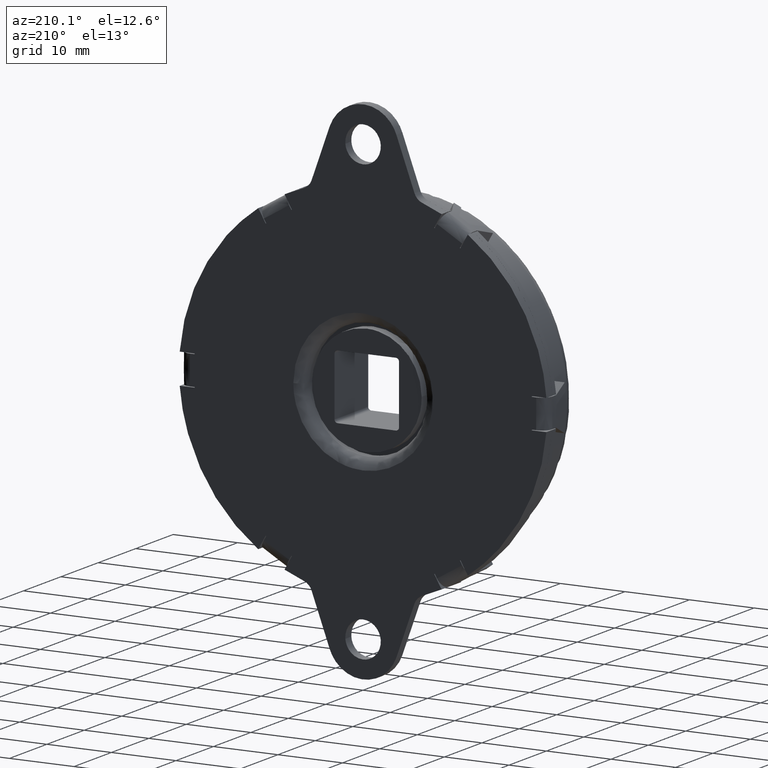
[diagram: clean part render]
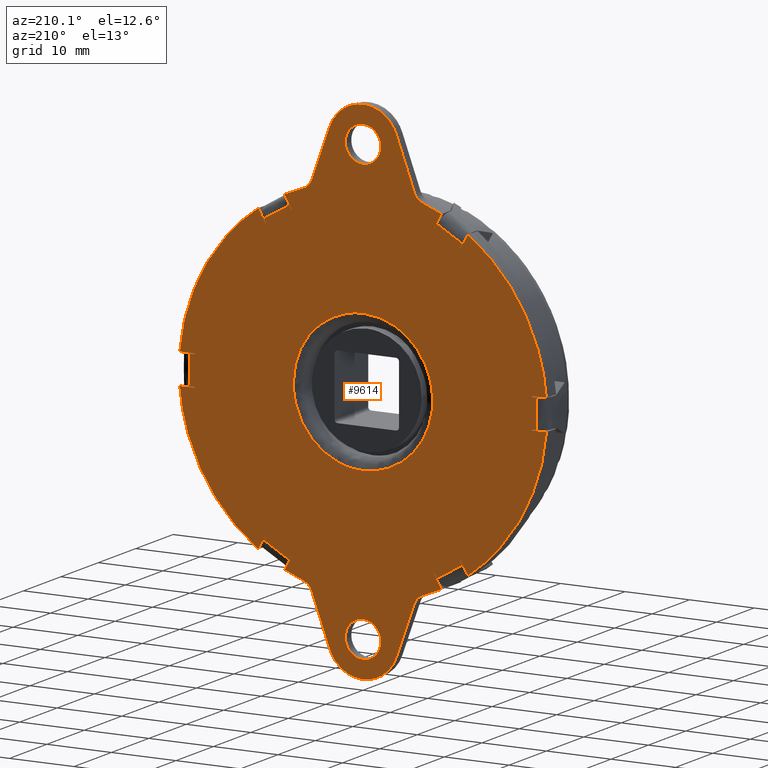
[diagram: same view with one face highlighted and labeled with its STEP entity id]
A machine part, auxiliary view. The second image highlights one B-rep face of the part: STEP entity #9614.
In plain terms, the highlighted face is a freeform B-spline surface patch.
Its self-contained STEP definition (entity closure, byte-faithful):
#2392=CARTESIAN_POINT('',(-2.741522667755105,-3.816392E-017,-33.784237486608703));
#2393=VERTEX_POINT('',#2392);
#2399=CARTESIAN_POINT('',(0.0,0.0,-31.250000000000000));
#2400=VERTEX_POINT('',#2399);
#2401=CARTESIAN_POINT('',(0.0,0.0,-31.250000000000000));
#2402=CARTESIAN_POINT('',(-2.542073851800144,0.0,-31.250000000000004));
#2403=CARTESIAN_POINT('',(-2.741522667755105,-3.816392E-017,-33.784237486608703));
#2411=(BOUNDED_CURVE()B_SPLINE_CURVE(2,(#2401,#2402,#2403),.UNSPECIFIED.,.F.,.U.)B_SPLINE_CURVE_WITH_KNOTS((3,3),(0.0,0.236331300615293),.UNSPECIFIED.)CURVE()GEOMETRIC_REPRESENTATION_ITEM()RATIONAL_B_SPLINE_CURVE((1.0,0.723120658625669,0.969723356135348))REPRESENTATION_ITEM(''));
#2412=EDGE_CURVE('',#2400,#2393,#2411,.T.);
#2414=CARTESIAN_POINT('',(2.741522667755104,-3.816392E-017,-34.215762513391297));
#2415=VERTEX_POINT('',#2414);
#2416=CARTESIAN_POINT('',(2.741522667755104,-3.816392E-017,-34.215762513391297));
#2417=CARTESIAN_POINT('',(2.750000000000000,0.0,-34.108047794411462));
#2418=CARTESIAN_POINT('',(2.750000000000000,0.0,-34.0));
#2419=CARTESIAN_POINT('',(2.750000000000000,0.0,-31.250000000000000));
#2420=CARTESIAN_POINT('',(0.0,0.0,-31.250000000000000));
#2428=(BOUNDED_CURVE()B_SPLINE_CURVE(2,(#2416,#2417,#2418,#2419,#2420),.UNSPECIFIED.,.F.,.U.)B_SPLINE_CURVE_WITH_KNOTS((3,2,3),(0.736331300615293,0.750000000000000,1.0),.UNSPECIFIED.)CURVE()GEOMETRIC_REPRESENTATION_ITEM()RATIONAL_B_SPLINE_CURVE((0.969723356135349,0.983986122560879,1.0,0.707106781186548,1.0))REPRESENTATION_ITEM(''));
#2429=EDGE_CURVE('',#2415,#2400,#2428,.T.);
#2505=CARTESIAN_POINT('',(0.0,0.0,-36.750000000000007));
#2506=VERTEX_POINT('',#2505);
#2507=CARTESIAN_POINT('',(0.0,0.0,-36.750000000000007));
#2508=CARTESIAN_POINT('',(2.542073851800152,0.0,-36.750000000000014));
#2509=CARTESIAN_POINT('',(2.741522667755105,-3.816392E-017,-34.215762513391297));
#2517=(BOUNDED_CURVE()B_SPLINE_CURVE(2,(#2507,#2508,#2509),.UNSPECIFIED.,.F.,.U.)B_SPLINE_CURVE_WITH_KNOTS((3,3),(0.500000000000000,0.736331300615293),.UNSPECIFIED.)CURVE()GEOMETRIC_REPRESENTATION_ITEM()RATIONAL_B_SPLINE_CURVE((1.0,0.723120658625668,0.969723356135350))REPRESENTATION_ITEM(''));
#2518=EDGE_CURVE('',#2506,#2415,#2517,.T.);
#2520=CARTESIAN_POINT('',(-2.741522667755105,-3.816392E-017,-33.784237486608710));
#2521=CARTESIAN_POINT('',(-2.750000000000000,0.0,-33.891952205588538));
#2522=CARTESIAN_POINT('',(-2.750000000000000,0.0,-34.0));
#2523=CARTESIAN_POINT('',(-2.750000000000000,0.0,-36.750000000000007));
#2524=CARTESIAN_POINT('',(0.0,0.0,-36.750000000000007));
#2532=(BOUNDED_CURVE()B_SPLINE_CURVE(2,(#2520,#2521,#2522,#2523,#2524),.UNSPECIFIED.,.F.,.U.)B_SPLINE_CURVE_WITH_KNOTS((3,2,3),(0.236331300615293,0.250000000000000,0.500000000000000),.UNSPECIFIED.)CURVE()GEOMETRIC_REPRESENTATION_ITEM()RATIONAL_B_SPLINE_CURVE((0.969723356135348,0.983986122560879,1.0,0.707106781186548,1.0))REPRESENTATION_ITEM(''));
#2533=EDGE_CURVE('',#2393,#2506,#2532,.T.);
#2574=CARTESIAN_POINT('',(-2.741522667755105,-3.816392E-017,34.215762513391297));
#2575=VERTEX_POINT('',#2574);
#2581=CARTESIAN_POINT('',(0.0,0.0,36.750000000000007));
#2582=VERTEX_POINT('',#2581);
#2583=CARTESIAN_POINT('',(0.0,0.0,36.750000000000007));
#2584=CARTESIAN_POINT('',(-2.542073851800152,0.0,36.750000000000014));
#2585=CARTESIAN_POINT('',(-2.741522667755105,-3.816392E-017,34.215762513391297));
#2593=(BOUNDED_CURVE()B_SPLINE_CURVE(2,(#2583,#2584,#2585),.UNSPECIFIED.,.F.,.U.)B_SPLINE_CURVE_WITH_KNOTS((3,3),(0.0,0.236331300615293),.UNSPECIFIED.)CURVE()GEOMETRIC_REPRESENTATION_ITEM()RATIONAL_B_SPLINE_CURVE((1.0,0.723120658625668,0.969723356135350))REPRESENTATION_ITEM(''));
#2594=EDGE_CURVE('',#2582,#2575,#2593,.T.);
#2596=CARTESIAN_POINT('',(2.741522667755105,-3.816392E-017,33.784237486608703));
#2597=VERTEX_POINT('',#2596);
#2598=CARTESIAN_POINT('',(2.741522667755106,-3.816392E-017,33.784237486608703));
#2599=CARTESIAN_POINT('',(2.750000000000001,0.0,33.891952205588538));
#2600=CARTESIAN_POINT('',(2.750000000000000,0.0,34.0));
#2601=CARTESIAN_POINT('',(2.750000000000000,0.0,36.750000000000007));
#2602=CARTESIAN_POINT('',(0.0,0.0,36.750000000000007));
#2610=(BOUNDED_CURVE()B_SPLINE_CURVE(2,(#2598,#2599,#2600,#2601,#2602),.UNSPECIFIED.,.F.,.U.)B_SPLINE_CURVE_WITH_KNOTS((3,2,3),(0.736331300615294,0.750000000000000,1.0),.UNSPECIFIED.)CURVE()GEOMETRIC_REPRESENTATION_ITEM()RATIONAL_B_SPLINE_CURVE((0.969723356135350,0.983986122560879,1.0,0.707106781186548,1.0))REPRESENTATION_ITEM(''));
#2611=EDGE_CURVE('',#2597,#2582,#2610,.T.);
#2687=CARTESIAN_POINT('',(0.0,0.0,31.250000000000000));
#2688=VERTEX_POINT('',#2687);
#2689=CARTESIAN_POINT('',(0.0,0.0,31.250000000000000));
#2690=CARTESIAN_POINT('',(2.542073851800152,0.0,31.249999999999993));
#2691=CARTESIAN_POINT('',(2.741522667755106,-3.816392E-017,33.784237486608703));
#2699=(BOUNDED_CURVE()B_SPLINE_CURVE(2,(#2689,#2690,#2691),.UNSPECIFIED.,.F.,.U.)B_SPLINE_CURVE_WITH_KNOTS((3,3),(0.500000000000000,0.736331300615293),.UNSPECIFIED.)CURVE()GEOMETRIC_REPRESENTATION_ITEM()RATIONAL_B_SPLINE_CURVE((1.0,0.723120658625668,0.969723356135350))REPRESENTATION_ITEM(''));
#2700=EDGE_CURVE('',#2688,#2597,#2699,.T.);
#2702=CARTESIAN_POINT('',(-2.741522667755105,-3.816392E-017,34.215762513391297));
#2703=CARTESIAN_POINT('',(-2.750000000000000,0.0,34.108047794411462));
#2704=CARTESIAN_POINT('',(-2.750000000000000,0.0,34.0));
#2705=CARTESIAN_POINT('',(-2.750000000000000,0.0,31.250000000000000));
#2706=CARTESIAN_POINT('',(0.0,0.0,31.250000000000000));
#2714=(BOUNDED_CURVE()B_SPLINE_CURVE(2,(#2702,#2703,#2704,#2705,#2706),.UNSPECIFIED.,.F.,.U.)B_SPLINE_CURVE_WITH_KNOTS((3,2,3),(0.236331300615293,0.250000000000000,0.500000000000000),.UNSPECIFIED.)CURVE()GEOMETRIC_REPRESENTATION_ITEM()RATIONAL_B_SPLINE_CURVE((0.969723356135350,0.983986122560879,1.0,0.707106781186548,1.0))REPRESENTATION_ITEM(''));
#2715=EDGE_CURVE('',#2575,#2688,#2714,.T.);
#2822=CARTESIAN_POINT('',(-15.082357673937750,0.0,-21.423409789186501));
#2823=VERTEX_POINT('',#2822);
#2829=CARTESIAN_POINT('',(-15.000161466032150,0.0,-21.481041780904501));
#2830=VERTEX_POINT('',#2829);
#2831=CARTESIAN_POINT('',(-15.082357673937739,0.0,-21.423409789186490));
#2832=CARTESIAN_POINT('',(-15.041314775575350,0.0,-21.452304520658650));
#2833=CARTESIAN_POINT('',(-15.000161466032150,0.0,-21.481041780904491));
#2841=(BOUNDED_CURVE()B_SPLINE_CURVE(2,(#2831,#2832,#2833),.UNSPECIFIED.,.F.,.U.)CURVE()GEOMETRIC_REPRESENTATION_ITEM()QUASI_UNIFORM_CURVE()RATIONAL_B_SPLINE_CURVE((1.0,0.999998164866501,1.0))REPRESENTATION_ITEM(''));
#2842=EDGE_CURVE('',#2823,#2830,#2841,.T.);
#2956=CARTESIAN_POINT('',(-11.103047091484960,0.0,-23.731041681281798));
#2957=VERTEX_POINT('',#2956);
#2963=CARTESIAN_POINT('',(-11.012038276150861,0.0,-23.773409789186498));
#2964=VERTEX_POINT('',#2963);
#2965=CARTESIAN_POINT('',(-11.103047091484960,0.0,-23.731041681281798));
#2966=CARTESIAN_POINT('',(-11.057583292340741,0.0,-23.752312964371782));
#2967=CARTESIAN_POINT('',(-11.012038276150850,0.0,-23.773409789186498));
#2975=(BOUNDED_CURVE()B_SPLINE_CURVE(2,(#2965,#2966,#2967),.UNSPECIFIED.,.F.,.U.)CURVE()GEOMETRIC_REPRESENTATION_ITEM()QUASI_UNIFORM_CURVE()RATIONAL_B_SPLINE_CURVE((1.0,0.999998164866862,1.0))REPRESENTATION_ITEM(''));
#2976=EDGE_CURVE('',#2957,#2964,#2975,.T.);
#3000=CARTESIAN_POINT('',(11.012038276150840,0.0,-23.773409789186498));
#3001=VERTEX_POINT('',#3000);
#3007=CARTESIAN_POINT('',(11.103047149002141,0.0,-23.731041780904501));
#3008=VERTEX_POINT('',#3007);
#3009=CARTESIAN_POINT('',(11.012038276150840,0.0,-23.773409789186509));
#3010=CARTESIAN_POINT('',(11.057583296822711,0.0,-23.752312962295701));
#3011=CARTESIAN_POINT('',(11.103047149002141,0.0,-23.731041780904508));
#3019=(BOUNDED_CURVE()B_SPLINE_CURVE(2,(#3009,#3010,#3011),.UNSPECIFIED.,.F.,.U.)CURVE()GEOMETRIC_REPRESENTATION_ITEM()QUASI_UNIFORM_CURVE()RATIONAL_B_SPLINE_CURVE((1.0,0.999998164866502,1.0))REPRESENTATION_ITEM(''));
#3020=EDGE_CURVE('',#3001,#3008,#3019,.T.);
#3134=CARTESIAN_POINT('',(15.000161408514950,0.0,-21.481041681281798));
#3135=VERTEX_POINT('',#3134);
#3141=CARTESIAN_POINT('',(15.082357673937750,0.0,-21.423409789186501));
#3142=VERTEX_POINT('',#3141);
#3143=CARTESIAN_POINT('',(15.000161408514950,0.0,-21.481041681281798));
#3144=CARTESIAN_POINT('',(15.041314779615314,0.0,-21.452304517814468));
#3145=CARTESIAN_POINT('',(15.082357673937731,0.0,-21.423409789186490));
#3153=(BOUNDED_CURVE()B_SPLINE_CURVE(2,(#3143,#3144,#3145),.UNSPECIFIED.,.F.,.U.)CURVE()GEOMETRIC_REPRESENTATION_ITEM()QUASI_UNIFORM_CURVE()RATIONAL_B_SPLINE_CURVE((1.0,0.999998164866862,1.0))REPRESENTATION_ITEM(''));
#3154=EDGE_CURVE('',#3135,#3142,#3153,.T.);
#3178=CARTESIAN_POINT('',(26.094395950088600,0.0,-2.350000000000000));
#3179=VERTEX_POINT('',#3178);
#3185=CARTESIAN_POINT('',(26.103208499999901,0.0,-2.250000000000000));
#3186=VERTEX_POINT('',#3185);
#3187=CARTESIAN_POINT('',(26.094395950088590,0.0,-2.349999999999994));
#3188=CARTESIAN_POINT('',(26.098898071954782,0.0,-2.300008446556680));
#3189=CARTESIAN_POINT('',(26.103208499999901,0.0,-2.250000000000000));
#3197=(BOUNDED_CURVE()B_SPLINE_CURVE(2,(#3187,#3188,#3189),.UNSPECIFIED.,.F.,.U.)CURVE()GEOMETRIC_REPRESENTATION_ITEM()QUASI_UNIFORM_CURVE()RATIONAL_B_SPLINE_CURVE((1.0,0.999998164866863,1.0))REPRESENTATION_ITEM(''));
#3198=EDGE_CURVE('',#3179,#3186,#3197,.T.);
#3312=CARTESIAN_POINT('',(26.103208615034301,0.0,2.250000000000000));
#3313=VERTEX_POINT('',#3312);
#3319=CARTESIAN_POINT('',(26.094395950088600,0.0,2.350000000000000));
#3320=VERTEX_POINT('',#3319);
#3321=CARTESIAN_POINT('',(26.103208615034280,0.0,2.250000000000005));
#3322=CARTESIAN_POINT('',(26.098898072397855,0.0,2.300008441636840));
#3323=CARTESIAN_POINT('',(26.094395950088590,0.0,2.349999999999985));
#3331=(BOUNDED_CURVE()B_SPLINE_CURVE(2,(#3321,#3322,#3323),.UNSPECIFIED.,.F.,.U.)CURVE()GEOMETRIC_REPRESENTATION_ITEM()QUASI_UNIFORM_CURVE()RATIONAL_B_SPLINE_CURVE((1.0,0.999998164866501,1.0))REPRESENTATION_ITEM(''));
#3332=EDGE_CURVE('',#3313,#3320,#3331,.T.);
#3645=CARTESIAN_POINT('',(15.082357673937750,0.0,21.423409789186501));
#3646=VERTEX_POINT('',#3645);
#3652=CARTESIAN_POINT('',(15.000161466032150,0.0,21.481041780904501));
#3653=VERTEX_POINT('',#3652);
#3654=CARTESIAN_POINT('',(15.082357673937750,0.0,21.423409789186479));
#3655=CARTESIAN_POINT('',(15.041314775575421,0.0,21.452304520658604));
#3656=CARTESIAN_POINT('',(15.000161466032150,0.0,21.481041780904491));
#3664=(BOUNDED_CURVE()B_SPLINE_CURVE(2,(#3654,#3655,#3656),.UNSPECIFIED.,.F.,.U.)CURVE()GEOMETRIC_REPRESENTATION_ITEM()QUASI_UNIFORM_CURVE()RATIONAL_B_SPLINE_CURVE((1.0,0.999998164866501,1.0))REPRESENTATION_ITEM(''));
#3665=EDGE_CURVE('',#3646,#3653,#3664,.T.);
#3779=CARTESIAN_POINT('',(11.103047091484941,0.0,23.731041681281798));
#3780=VERTEX_POINT('',#3779);
#3786=CARTESIAN_POINT('',(11.012038276150840,0.0,23.773409789186498));
#3787=VERTEX_POINT('',#3786);
#3788=CARTESIAN_POINT('',(11.103047091484941,0.0,23.731041681281798));
#3789=CARTESIAN_POINT('',(11.057583292341331,0.0,23.752312964371512));
#3790=CARTESIAN_POINT('',(11.012038276150850,0.0,23.773409789186498));
#3798=(BOUNDED_CURVE()B_SPLINE_CURVE(2,(#3788,#3789,#3790),.UNSPECIFIED.,.F.,.U.)CURVE()GEOMETRIC_REPRESENTATION_ITEM()QUASI_UNIFORM_CURVE()RATIONAL_B_SPLINE_CURVE((1.0,0.999998164866863,1.0))REPRESENTATION_ITEM(''));
#3799=EDGE_CURVE('',#3780,#3787,#3798,.T.);
#3823=CARTESIAN_POINT('',(-11.012038276150861,0.0,23.773409789186498));
#3824=VERTEX_POINT('',#3823);
#3830=CARTESIAN_POINT('',(-11.103047149002141,0.0,23.731041780904501));
#3831=VERTEX_POINT('',#3830);
#3832=CARTESIAN_POINT('',(-11.012038276150861,0.0,23.773409789186498));
#3833=CARTESIAN_POINT('',(-11.057583296821532,0.0,23.752312962296248));
#3834=CARTESIAN_POINT('',(-11.103047149002149,0.0,23.731041780904501));
#3842=(BOUNDED_CURVE()B_SPLINE_CURVE(2,(#3832,#3833,#3834),.UNSPECIFIED.,.F.,.U.)CURVE()GEOMETRIC_REPRESENTATION_ITEM()QUASI_UNIFORM_CURVE()RATIONAL_B_SPLINE_CURVE((1.0,0.999998164866501,1.0))REPRESENTATION_ITEM(''));
#3843=EDGE_CURVE('',#3824,#3831,#3842,.T.);
#3957=CARTESIAN_POINT('',(-15.000161408514950,0.0,21.481041681281798));
#3958=VERTEX_POINT('',#3957);
#3964=CARTESIAN_POINT('',(-15.082357673937750,0.0,21.423409789186501));
#3965=VERTEX_POINT('',#3964);
#3966=CARTESIAN_POINT('',(-15.000161408514950,0.0,21.481041681281798));
#3967=CARTESIAN_POINT('',(-15.041314779614513,0.0,21.452304517815023));
#3968=CARTESIAN_POINT('',(-15.082357673937750,0.0,21.423409789186479));
#3976=(BOUNDED_CURVE()B_SPLINE_CURVE(2,(#3966,#3967,#3968),.UNSPECIFIED.,.F.,.U.)CURVE()GEOMETRIC_REPRESENTATION_ITEM()QUASI_UNIFORM_CURVE()RATIONAL_B_SPLINE_CURVE((1.0,0.999998164866863,1.0))REPRESENTATION_ITEM(''));
#3977=EDGE_CURVE('',#3958,#3965,#3976,.T.);
#4001=CARTESIAN_POINT('',(-26.094395950088600,0.0,2.350000000000000));
#4002=VERTEX_POINT('',#4001);
#4008=CARTESIAN_POINT('',(-26.103208615034301,0.0,2.250000000000000));
#4009=VERTEX_POINT('',#4008);
#4010=CARTESIAN_POINT('',(-26.094395950088590,0.0,2.349999999999991));
#4011=CARTESIAN_POINT('',(-26.098898072397855,0.0,2.300008441636852));
#4012=CARTESIAN_POINT('',(-26.103208615034280,0.0,2.250000000000012));
#4020=(BOUNDED_CURVE()B_SPLINE_CURVE(2,(#4010,#4011,#4012),.UNSPECIFIED.,.F.,.U.)CURVE()GEOMETRIC_REPRESENTATION_ITEM()QUASI_UNIFORM_CURVE()RATIONAL_B_SPLINE_CURVE((1.0,0.999998164866501,1.0))REPRESENTATION_ITEM(''));
#4021=EDGE_CURVE('',#4002,#4009,#4020,.T.);
#4135=CARTESIAN_POINT('',(-26.103208499999901,0.0,-2.250000000000000));
#4136=VERTEX_POINT('',#4135);
#4142=CARTESIAN_POINT('',(-26.094395950088600,0.0,-2.350000000000000));
#4143=VERTEX_POINT('',#4142);
#4144=CARTESIAN_POINT('',(-26.103208499999901,0.0,-2.250000000000000));
#4145=CARTESIAN_POINT('',(-26.098898071954778,0.0,-2.300008446556676));
#4146=CARTESIAN_POINT('',(-26.094395950088590,0.0,-2.349999999999988));
#4154=(BOUNDED_CURVE()B_SPLINE_CURVE(2,(#4144,#4145,#4146),.UNSPECIFIED.,.F.,.U.)CURVE()GEOMETRIC_REPRESENTATION_ITEM()QUASI_UNIFORM_CURVE()RATIONAL_B_SPLINE_CURVE((1.0,0.999998164866863,1.0))REPRESENTATION_ITEM(''));
#4155=EDGE_CURVE('',#4136,#4143,#4154,.T.);
#4558=CARTESIAN_POINT('',(0.0,0.0,-10.800000000000001));
#4559=VERTEX_POINT('',#4558);
#4560=CARTESIAN_POINT('',(3.815661238658730,-2.288132E-014,-10.103500839751380));
#4561=VERTEX_POINT('',#4560);
#4562=CARTESIAN_POINT('',(0.0,0.0,-10.800000000000001));
#4563=CARTESIAN_POINT('',(1.971399035252309,0.0,-10.800000000000001));
#4564=CARTESIAN_POINT('',(3.815661238658730,-2.288132E-014,-10.103500839751380));
#4572=(BOUNDED_CURVE()B_SPLINE_CURVE(2,(#4562,#4563,#4564),.UNSPECIFIED.,.F.,.U.)B_SPLINE_CURVE_WITH_KNOTS((3,3),(0.500000000000000,0.560000000007809),.UNSPECIFIED.)CURVE()GEOMETRIC_REPRESENTATION_ITEM()RATIONAL_B_SPLINE_CURVE((1.0,0.929705627475622,0.893152553767337))REPRESENTATION_ITEM(''));
#4573=EDGE_CURVE('',#4559,#4561,#4572,.T.);
#4575=CARTESIAN_POINT('',(0.0,0.0,10.800000000000001));
#4576=VERTEX_POINT('',#4575);
#4577=CARTESIAN_POINT('',(0.0,0.0,10.800000000000001));
#4578=CARTESIAN_POINT('',(-10.800000000000001,0.0,10.800000000000001));
#4579=CARTESIAN_POINT('',(-10.800000000000001,0.0,0.0));
#4580=CARTESIAN_POINT('',(-10.800000000000001,0.0,-10.800000000000001));
#4581=CARTESIAN_POINT('',(0.0,0.0,-10.800000000000001));
#4589=(BOUNDED_CURVE()B_SPLINE_CURVE(2,(#4577,#4578,#4579,#4580,#4581),.UNSPECIFIED.,.F.,.U.)B_SPLINE_CURVE_WITH_KNOTS((3,2,3),(0.0,0.250000000000000,0.500000000000000),.UNSPECIFIED.)CURVE()GEOMETRIC_REPRESENTATION_ITEM()RATIONAL_B_SPLINE_CURVE((1.0,0.707106781186548,1.0,0.707106781186548,1.0))REPRESENTATION_ITEM(''));
#4590=EDGE_CURVE('',#4576,#4559,#4589,.T.);
#4592=CARTESIAN_POINT('',(10.799999999944490,-2.285745E-014,4.437237E-016));
#4593=VERTEX_POINT('',#4592);
#4594=CARTESIAN_POINT('',(10.799999999944490,-2.285745E-014,4.437237E-016));
#4595=CARTESIAN_POINT('',(10.800000000000001,0.0,10.800000000000001));
#4596=CARTESIAN_POINT('',(0.0,0.0,10.800000000000001));
#4604=(BOUNDED_CURVE()B_SPLINE_CURVE(2,(#4594,#4595,#4596),.UNSPECIFIED.,.F.,.U.)B_SPLINE_CURVE_WITH_KNOTS((3,3),(0.750000000000000,1.0),.UNSPECIFIED.)CURVE()GEOMETRIC_REPRESENTATION_ITEM()RATIONAL_B_SPLINE_CURVE((1.0,0.707106781186548,1.0))REPRESENTATION_ITEM(''));
#4605=EDGE_CURVE('',#4593,#4576,#4604,.T.);
#4658=CARTESIAN_POINT('',(3.815661238658730,-2.288132E-014,-10.103500839751380));
#4659=CARTESIAN_POINT('',(10.800000000000020,0.0,-7.465814054990247));
#4660=CARTESIAN_POINT('',(10.799999999944488,-2.285745E-014,4.437237E-016));
#4668=(BOUNDED_CURVE()B_SPLINE_CURVE(2,(#4658,#4659,#4660),.UNSPECIFIED.,.F.,.U.)B_SPLINE_CURVE_WITH_KNOTS((3,3),(0.560000000007808,0.750000000000000),.UNSPECIFIED.)CURVE()GEOMETRIC_REPRESENTATION_ITEM()RATIONAL_B_SPLINE_CURVE((0.893152553767338,0.777401153710924,1.000000000000001))REPRESENTATION_ITEM(''));
#4669=EDGE_CURVE('',#4561,#4593,#4668,.T.);
#5404=CARTESIAN_POINT('',(-11.454311004685140,-3.694822E-012,24.339448625799850));
#5405=VERTEX_POINT('',#5404);
#5436=CARTESIAN_POINT('',(-15.351425321708501,0.0,22.089448625803399));
#5437=VERTEX_POINT('',#5436);
#5438=CARTESIAN_POINT('',(-15.351425321708509,0.0,22.089448625803382));
#5439=CARTESIAN_POINT('',(-13.497297578198559,0.0,23.378005170313578));
#5440=CARTESIAN_POINT('',(-11.454311004685140,-3.694822E-012,24.339448625799850));
#5448=(BOUNDED_CURVE()B_SPLINE_CURVE(2,(#5438,#5439,#5440),.UNSPECIFIED.,.F.,.U.)CURVE()GEOMETRIC_REPRESENTATION_ITEM()QUASI_UNIFORM_CURVE()RATIONAL_B_SPLINE_CURVE((1.0,0.996495774215292,1.0))REPRESENTATION_ITEM(''));
#5449=EDGE_CURVE('',#5437,#5405,#5448,.T.);
#5514=CARTESIAN_POINT('',(-26.805736326391500,-3.694822E-012,2.249999999995000));
#5515=VERTEX_POINT('',#5514);
#5546=CARTESIAN_POINT('',(-26.805736326391251,0.0,-2.249999999997615));
#5547=VERTEX_POINT('',#5546);
#5548=CARTESIAN_POINT('',(-26.805736326391241,0.0,-2.249999999997616));
#5549=CARTESIAN_POINT('',(-26.994595156394798,0.0,-1.335303E-012));
#5550=CARTESIAN_POINT('',(-26.805736326391500,-3.694822E-012,2.249999999995000));
#5558=(BOUNDED_CURVE()B_SPLINE_CURVE(2,(#5548,#5549,#5550),.UNSPECIFIED.,.F.,.U.)CURVE()GEOMETRIC_REPRESENTATION_ITEM()QUASI_UNIFORM_CURVE()RATIONAL_B_SPLINE_CURVE((1.0,0.996495774215292,1.0))REPRESENTATION_ITEM(''));
#5559=EDGE_CURVE('',#5547,#5515,#5558,.T.);
#5624=CARTESIAN_POINT('',(-15.351425321706399,-3.694822E-012,-22.089448625804749));
#5625=VERTEX_POINT('',#5624);
#5656=CARTESIAN_POINT('',(-11.454311004682641,0.0,-24.339448625800951));
#5657=VERTEX_POINT('',#5656);
#5658=CARTESIAN_POINT('',(-11.454311004682650,0.0,-24.339448625801001));
#5659=CARTESIAN_POINT('',(-13.497297578196251,0.0,-23.378005170314932));
#5660=CARTESIAN_POINT('',(-15.351425321706399,-3.694822E-012,-22.089448625804749));
#5668=(BOUNDED_CURVE()B_SPLINE_CURVE(2,(#5658,#5659,#5660),.UNSPECIFIED.,.F.,.U.)CURVE()GEOMETRIC_REPRESENTATION_ITEM()QUASI_UNIFORM_CURVE()RATIONAL_B_SPLINE_CURVE((1.0,0.996495774215291,1.0))REPRESENTATION_ITEM(''));
#5669=EDGE_CURVE('',#5657,#5625,#5668,.T.);
#5734=CARTESIAN_POINT('',(11.454311004685019,-3.694822E-012,-24.339448625799850));
#5735=VERTEX_POINT('',#5734);
#5766=CARTESIAN_POINT('',(15.351425321708501,0.0,-22.089448625803399));
#5767=VERTEX_POINT('',#5766);
#5768=CARTESIAN_POINT('',(15.351425321708501,0.0,-22.089448625803389));
#5769=CARTESIAN_POINT('',(13.497297578198507,0.0,-23.378005170313628));
#5770=CARTESIAN_POINT('',(11.454311004685019,-3.694822E-012,-24.339448625799850));
#5778=(BOUNDED_CURVE()B_SPLINE_CURVE(2,(#5768,#5769,#5770),.UNSPECIFIED.,.F.,.U.)CURVE()GEOMETRIC_REPRESENTATION_ITEM()QUASI_UNIFORM_CURVE()RATIONAL_B_SPLINE_CURVE((1.0,0.996495774215292,1.0))REPRESENTATION_ITEM(''));
#5779=EDGE_CURVE('',#5767,#5735,#5778,.T.);
#5844=CARTESIAN_POINT('',(26.805736326391500,0.0,-2.249999999995000));
#5845=VERTEX_POINT('',#5844);
#5876=CARTESIAN_POINT('',(26.805736326391251,-3.694822E-012,2.249999999997615));
#5877=VERTEX_POINT('',#5876);
#5878=CARTESIAN_POINT('',(26.805736326391251,-3.694822E-012,2.249999999997615));
#5879=CARTESIAN_POINT('',(26.994595156394798,0.0,1.324028E-012));
#5880=CARTESIAN_POINT('',(26.805736326391461,0.0,-2.249999999994996));
#5888=(BOUNDED_CURVE()B_SPLINE_CURVE(2,(#5878,#5879,#5880),.UNSPECIFIED.,.F.,.U.)CURVE()GEOMETRIC_REPRESENTATION_ITEM()QUASI_UNIFORM_CURVE()RATIONAL_B_SPLINE_CURVE((1.0,0.996495774215292,1.0))REPRESENTATION_ITEM(''));
#5889=EDGE_CURVE('',#5877,#5845,#5888,.T.);
#5954=CARTESIAN_POINT('',(15.351425321706349,-3.694822E-012,22.089448625804749));
#5955=VERTEX_POINT('',#5954);
#5986=CARTESIAN_POINT('',(11.454311004682699,0.0,24.339448625800951));
#5987=VERTEX_POINT('',#5986);
#5988=CARTESIAN_POINT('',(11.454311004682710,0.0,24.339448625800969));
#5989=CARTESIAN_POINT('',(13.497297578196289,0.0,23.378005170314903));
#5990=CARTESIAN_POINT('',(15.351425321706349,-3.694822E-012,22.089448625804749));
#5998=(BOUNDED_CURVE()B_SPLINE_CURVE(2,(#5988,#5989,#5990),.UNSPECIFIED.,.F.,.U.)CURVE()GEOMETRIC_REPRESENTATION_ITEM()QUASI_UNIFORM_CURVE()RATIONAL_B_SPLINE_CURVE((1.0,0.996495774215292,1.0))REPRESENTATION_ITEM(''));
#5999=EDGE_CURVE('',#5987,#5955,#5998,.T.);
#7084=CARTESIAN_POINT('',(11.454311004682699,0.0,24.339448625800951));
#7085=CARTESIAN_POINT('',(11.103047091484941,0.0,23.731041681281798));
#7086=QUASI_UNIFORM_CURVE('',1,(#7084,#7085),.UNSPECIFIED.,.F.,.U.);
#7087=EDGE_CURVE('',#5987,#3780,#7086,.T.);
#7103=CARTESIAN_POINT('',(15.351425321706349,-3.694822E-012,22.089448625804749));
#7104=CARTESIAN_POINT('',(15.000161466032150,0.0,21.481041780904501));
#7105=QUASI_UNIFORM_CURVE('',1,(#7103,#7104),.UNSPECIFIED.,.F.,.U.);
#7106=EDGE_CURVE('',#5955,#3653,#7105,.T.);
#7222=CARTESIAN_POINT('',(-15.351425321708501,0.0,22.089448625803399));
#7223=CARTESIAN_POINT('',(-15.000161408514950,0.0,21.481041681281798));
#7224=QUASI_UNIFORM_CURVE('',1,(#7222,#7223),.UNSPECIFIED.,.F.,.U.);
#7225=EDGE_CURVE('',#5437,#3958,#7224,.T.);
#7241=CARTESIAN_POINT('',(-11.454311004685140,-3.694822E-012,24.339448625799850));
#7242=CARTESIAN_POINT('',(-11.103047149002141,0.0,23.731041780904501));
#7243=QUASI_UNIFORM_CURVE('',1,(#7241,#7242),.UNSPECIFIED.,.F.,.U.);
#7244=EDGE_CURVE('',#5405,#3831,#7243,.T.);
#7360=CARTESIAN_POINT('',(-26.805736326391251,0.0,-2.249999999997615));
#7361=CARTESIAN_POINT('',(-26.103208499999901,0.0,-2.250000000000000));
#7362=QUASI_UNIFORM_CURVE('',1,(#7360,#7361),.UNSPECIFIED.,.F.,.U.);
#7363=EDGE_CURVE('',#5547,#4136,#7362,.T.);
#7379=CARTESIAN_POINT('',(-26.805736326391500,-3.694822E-012,2.249999999995000));
#7380=CARTESIAN_POINT('',(-26.103208615034301,0.0,2.250000000000000));
#7381=QUASI_UNIFORM_CURVE('',1,(#7379,#7380),.UNSPECIFIED.,.F.,.U.);
#7382=EDGE_CURVE('',#5515,#4009,#7381,.T.);
#7498=CARTESIAN_POINT('',(-11.454311004682641,0.0,-24.339448625800951));
#7499=CARTESIAN_POINT('',(-11.103047091484960,0.0,-23.731041681281798));
#7500=QUASI_UNIFORM_CURVE('',1,(#7498,#7499),.UNSPECIFIED.,.F.,.U.);
#7501=EDGE_CURVE('',#5657,#2957,#7500,.T.);
#7517=CARTESIAN_POINT('',(-15.351425321706399,-3.694822E-012,-22.089448625804749));
#7518=CARTESIAN_POINT('',(-15.000161466032150,0.0,-21.481041780904501));
#7519=QUASI_UNIFORM_CURVE('',1,(#7517,#7518),.UNSPECIFIED.,.F.,.U.);
#7520=EDGE_CURVE('',#5625,#2830,#7519,.T.);
#7688=CARTESIAN_POINT('',(15.351425321708501,0.0,-22.089448625803399));
#7689=CARTESIAN_POINT('',(15.000161408514950,0.0,-21.481041681281798));
#7690=QUASI_UNIFORM_CURVE('',1,(#7688,#7689),.UNSPECIFIED.,.F.,.U.);
#7691=EDGE_CURVE('',#5767,#3135,#7690,.T.);
#7703=CARTESIAN_POINT('',(11.454311004685019,-3.694822E-012,-24.339448625799850));
#7704=CARTESIAN_POINT('',(11.103047149002141,0.0,-23.731041780904501));
#7705=QUASI_UNIFORM_CURVE('',1,(#7703,#7704),.UNSPECIFIED.,.F.,.U.);
#7706=EDGE_CURVE('',#5735,#3008,#7705,.T.);
#7876=CARTESIAN_POINT('',(26.805736326391500,0.0,-2.249999999995000));
#7877=CARTESIAN_POINT('',(26.103208499999901,0.0,-2.250000000000000));
#7878=QUASI_UNIFORM_CURVE('',1,(#7876,#7877),.UNSPECIFIED.,.F.,.U.);
#7879=EDGE_CURVE('',#5845,#3186,#7878,.T.);
#7895=CARTESIAN_POINT('',(26.805736326391251,-3.694822E-012,2.249999999997615));
#7896=CARTESIAN_POINT('',(26.103208615034301,0.0,2.250000000000000));
#7897=QUASI_UNIFORM_CURVE('',1,(#7895,#7896),.UNSPECIFIED.,.F.,.U.);
#7898=EDGE_CURVE('',#5877,#3313,#7897,.T.);
#8219=CARTESIAN_POINT('',(-9.204176096234411,0.0,26.972822291883201));
#8220=VERTEX_POINT('',#8219);
#8221=CARTESIAN_POINT('',(-7.970697938407399,0.0,28.181611669224299));
#8222=VERTEX_POINT('',#8221);
#8223=CARTESIAN_POINT('',(-9.204176096234408,0.0,26.972822291883190));
#8224=CARTESIAN_POINT('',(-8.298129571266120,0.0,27.282000607631737));
#8225=CARTESIAN_POINT('',(-7.970697938407403,0.0,28.181611669224299));
#8233=(BOUNDED_CURVE()B_SPLINE_CURVE(2,(#8223,#8224,#8225),.UNSPECIFIED.,.F.,.U.)CURVE()GEOMETRIC_REPRESENTATION_ITEM()QUASI_UNIFORM_CURVE()RATIONAL_B_SPLINE_CURVE((1.0,0.901989463470575,1.0))REPRESENTATION_ITEM(''));
#8234=EDGE_CURVE('',#8220,#8222,#8233,.T.);
#8271=CARTESIAN_POINT('',(-5.168309414322491,0.0,35.881110788291203));
#8272=VERTEX_POINT('',#8271);
#8273=CARTESIAN_POINT('',(-5.168309414322491,0.0,35.881110788291203));
#8274=CARTESIAN_POINT('',(-7.970697938407399,0.0,28.181611669224299));
#8275=QUASI_UNIFORM_CURVE('',1,(#8273,#8274),.UNSPECIFIED.,.F.,.U.);
#8276=EDGE_CURVE('',#8272,#8222,#8275,.T.);
#8312=CARTESIAN_POINT('',(5.168309499999910,0.0,35.881110999999997));
#8313=VERTEX_POINT('',#8312);
#8314=CARTESIAN_POINT('',(5.168309499999910,0.0,35.881110999999997));
#8315=CARTESIAN_POINT('',(3.851141312132095,0.0,39.500000059390828));
#8316=CARTESIAN_POINT('',(-0.000000084818891,0.0,39.500000000000000));
#8317=CARTESIAN_POINT('',(-3.851141481769878,0.0,39.499999940609179));
#8318=CARTESIAN_POINT('',(-5.168309414322487,0.0,35.881110788291203));
#8326=(BOUNDED_CURVE()B_SPLINE_CURVE(2,(#8314,#8315,#8316,#8317,#8318),.UNSPECIFIED.,.F.,.U.)B_SPLINE_CURVE_WITH_KNOTS((3,2,3),(0.0,0.500000000000000,1.0),.UNSPECIFIED.)CURVE()GEOMETRIC_REPRESENTATION_ITEM()RATIONAL_B_SPLINE_CURVE((1.0,0.819152048711731,1.0,0.819152048711731,1.0))REPRESENTATION_ITEM(''));
#8327=EDGE_CURVE('',#8313,#8272,#8326,.T.);
#8360=CARTESIAN_POINT('',(7.970697938407290,0.0,28.181611669224349));
#8361=VERTEX_POINT('',#8360);
#8362=CARTESIAN_POINT('',(7.970697938407290,0.0,28.181611669224349));
#8363=CARTESIAN_POINT('',(5.168309499999910,0.0,35.881110999999997));
#8364=QUASI_UNIFORM_CURVE('',1,(#8362,#8363),.UNSPECIFIED.,.F.,.U.);
#8365=EDGE_CURVE('',#8361,#8313,#8364,.T.);
#8397=CARTESIAN_POINT('',(9.204176096234299,0.0,26.972822291883151));
#8398=VERTEX_POINT('',#8397);
#8399=CARTESIAN_POINT('',(7.970697938407285,0.0,28.181611669224349));
#8400=CARTESIAN_POINT('',(8.298129571265990,0.0,27.282000607631744));
#8401=CARTESIAN_POINT('',(9.204176096234312,0.0,26.972822291883190));
#8409=(BOUNDED_CURVE()B_SPLINE_CURVE(2,(#8399,#8400,#8401),.UNSPECIFIED.,.F.,.U.)CURVE()GEOMETRIC_REPRESENTATION_ITEM()QUASI_UNIFORM_CURVE()RATIONAL_B_SPLINE_CURVE((1.0,0.901989463470570,1.0))REPRESENTATION_ITEM(''));
#8410=EDGE_CURVE('',#8361,#8398,#8409,.T.);
#8450=CARTESIAN_POINT('',(9.204176096234320,0.0,-26.972822291883201));
#8451=VERTEX_POINT('',#8450);
#8452=CARTESIAN_POINT('',(7.970697938407309,0.0,-28.181611669224299));
#8453=VERTEX_POINT('',#8452);
#8454=CARTESIAN_POINT('',(9.204176096234317,0.0,-26.972822291883180));
#8455=CARTESIAN_POINT('',(8.298129571266024,0.0,-27.282000607631730));
#8456=CARTESIAN_POINT('',(7.970697938407303,0.0,-28.181611669224299));
#8464=(BOUNDED_CURVE()B_SPLINE_CURVE(2,(#8454,#8455,#8456),.UNSPECIFIED.,.F.,.U.)CURVE()GEOMETRIC_REPRESENTATION_ITEM()QUASI_UNIFORM_CURVE()RATIONAL_B_SPLINE_CURVE((1.0,0.901989463470575,1.0))REPRESENTATION_ITEM(''));
#8465=EDGE_CURVE('',#8451,#8453,#8464,.T.);
#8486=CARTESIAN_POINT('',(5.168309414322491,0.0,-35.881110788291203));
#8487=VERTEX_POINT('',#8486);
#8488=CARTESIAN_POINT('',(5.168309414322491,0.0,-35.881110788291203));
#8489=CARTESIAN_POINT('',(7.970697938407309,0.0,-28.181611669224299));
#8490=QUASI_UNIFORM_CURVE('',1,(#8488,#8489),.UNSPECIFIED.,.F.,.U.);
#8491=EDGE_CURVE('',#8487,#8453,#8490,.T.);
#8521=CARTESIAN_POINT('',(-5.168309499999991,0.0,-35.881111000000097));
#8522=VERTEX_POINT('',#8521);
#8523=CARTESIAN_POINT('',(-5.168309499999991,0.0,-35.881111000000097));
#8524=CARTESIAN_POINT('',(-3.851141312132042,0.0,-39.500000059390857));
#8525=CARTESIAN_POINT('',(0.000000084818921,0.0,-39.500000000000000));
#8526=CARTESIAN_POINT('',(3.851141481769883,0.0,-39.499999940609165));
#8527=CARTESIAN_POINT('',(5.168309414322486,0.0,-35.881110788291203));
#8535=(BOUNDED_CURVE()B_SPLINE_CURVE(2,(#8523,#8524,#8525,#8526,#8527),.UNSPECIFIED.,.F.,.U.)B_SPLINE_CURVE_WITH_KNOTS((3,2,3),(0.0,0.500000000000000,1.0),.UNSPECIFIED.)CURVE()GEOMETRIC_REPRESENTATION_ITEM()RATIONAL_B_SPLINE_CURVE((1.0,0.819152048711733,1.0,0.819152048711733,1.0))REPRESENTATION_ITEM(''));
#8536=EDGE_CURVE('',#8522,#8487,#8535,.T.);
#8553=CARTESIAN_POINT('',(-7.970697938407380,0.0,-28.181611669224349));
#8554=VERTEX_POINT('',#8553);
#8555=CARTESIAN_POINT('',(-7.970697938407380,0.0,-28.181611669224349));
#8556=CARTESIAN_POINT('',(-5.168309499999991,0.0,-35.881111000000097));
#8557=QUASI_UNIFORM_CURVE('',1,(#8555,#8556),.UNSPECIFIED.,.F.,.U.);
#8558=EDGE_CURVE('',#8554,#8522,#8557,.T.);
#8584=CARTESIAN_POINT('',(-9.204176096234411,0.0,-26.972822291883201));
#8585=VERTEX_POINT('',#8584);
#8586=CARTESIAN_POINT('',(-7.970697938407383,0.0,-28.181611669224349));
#8587=CARTESIAN_POINT('',(-8.298129571266088,0.0,-27.282000607631744));
#8588=CARTESIAN_POINT('',(-9.204176096234408,0.0,-26.972822291883190));
#8596=(BOUNDED_CURVE()B_SPLINE_CURVE(2,(#8586,#8587,#8588),.UNSPECIFIED.,.F.,.U.)CURVE()GEOMETRIC_REPRESENTATION_ITEM()QUASI_UNIFORM_CURVE()RATIONAL_B_SPLINE_CURVE((1.0,0.901989463470570,1.0))REPRESENTATION_ITEM(''));
#8597=EDGE_CURVE('',#8554,#8585,#8596,.T.);
#9006=CARTESIAN_POINT('',(12.166314696393821,0.0,25.772675195026050));
#9007=VERTEX_POINT('',#9006);
#9015=CARTESIAN_POINT('',(12.166314696393821,0.0,25.772675195026050));
#9016=CARTESIAN_POINT('',(11.012038276150840,0.0,23.773409789186498));
#9017=QUASI_UNIFORM_CURVE('',1,(#9015,#9016),.UNSPECIFIED.,.F.,.U.);
#9018=EDGE_CURVE('',#9007,#3787,#9017,.T.);
#9030=CARTESIAN_POINT('',(-12.166314696393840,0.0,25.772675195026050));
#9031=VERTEX_POINT('',#9030);
#9037=CARTESIAN_POINT('',(-11.012038276150861,0.0,23.773409789186498));
#9038=CARTESIAN_POINT('',(-12.166314696393840,0.0,25.772675195026050));
#9039=QUASI_UNIFORM_CURVE('',1,(#9037,#9038),.UNSPECIFIED.,.F.,.U.);
#9040=EDGE_CURVE('',#3824,#9031,#9039,.T.);
#9061=CARTESIAN_POINT('',(12.166314696393840,0.0,25.772675195026061));
#9062=CARTESIAN_POINT('',(10.718944974579998,0.0,26.455924232402584));
#9063=CARTESIAN_POINT('',(9.204176096234308,0.0,26.972822291883158));
#9071=(BOUNDED_CURVE()B_SPLINE_CURVE(2,(#9061,#9062,#9063),.UNSPECIFIED.,.F.,.U.)CURVE()GEOMETRIC_REPRESENTATION_ITEM()QUASI_UNIFORM_CURVE()RATIONAL_B_SPLINE_CURVE((1.0,0.998426799124512,1.0))REPRESENTATION_ITEM(''));
#9072=EDGE_CURVE('',#9007,#8398,#9071,.T.);
#9094=CARTESIAN_POINT('',(-9.204176096234411,0.0,26.972822291883201));
#9095=CARTESIAN_POINT('',(-10.718944974580038,0.0,26.455924232402563));
#9096=CARTESIAN_POINT('',(-12.166314696393840,0.0,25.772675195026061));
#9104=(BOUNDED_CURVE()B_SPLINE_CURVE(2,(#9094,#9095,#9096),.UNSPECIFIED.,.F.,.U.)CURVE()GEOMETRIC_REPRESENTATION_ITEM()QUASI_UNIFORM_CURVE()RATIONAL_B_SPLINE_CURVE((1.0,0.998426799124512,1.0))REPRESENTATION_ITEM(''));
#9105=EDGE_CURVE('',#8220,#9031,#9104,.T.);
#9116=CARTESIAN_POINT('',(-16.236634094180701,0.0,23.422675195026049));
#9117=VERTEX_POINT('',#9116);
#9125=CARTESIAN_POINT('',(-16.236634094180701,0.0,23.422675195026049));
#9126=CARTESIAN_POINT('',(-15.082357673937750,0.0,21.423409789186501));
#9127=QUASI_UNIFORM_CURVE('',1,(#9125,#9126),.UNSPECIFIED.,.F.,.U.);
#9128=EDGE_CURVE('',#9117,#3965,#9127,.T.);
#9140=CARTESIAN_POINT('',(-28.402948790574548,0.0,2.350000000000000));
#9141=VERTEX_POINT('',#9140);
#9147=CARTESIAN_POINT('',(-26.094395950088600,0.0,2.350000000000000));
#9148=CARTESIAN_POINT('',(-28.402948790574548,0.0,2.350000000000000));
#9149=QUASI_UNIFORM_CURVE('',1,(#9147,#9148),.UNSPECIFIED.,.F.,.U.);
#9150=EDGE_CURVE('',#4002,#9141,#9149,.T.);
#9171=CARTESIAN_POINT('',(-16.236634094180701,0.0,23.422675195026059));
#9172=CARTESIAN_POINT('',(-27.293601805049221,0.0,15.757968349299626));
#9173=CARTESIAN_POINT('',(-28.402948790574548,0.0,2.349999999999991));
#9181=(BOUNDED_CURVE()B_SPLINE_CURVE(2,(#9171,#9172,#9173),.UNSPECIFIED.,.F.,.U.)CURVE()GEOMETRIC_REPRESENTATION_ITEM()QUASI_UNIFORM_CURVE()RATIONAL_B_SPLINE_CURVE((1.0,0.904304392807932,1.0))REPRESENTATION_ITEM(''));
#9182=EDGE_CURVE('',#9117,#9141,#9181,.T.);
#9193=CARTESIAN_POINT('',(-28.402948790574548,0.0,-2.350000000000000));
#9194=VERTEX_POINT('',#9193);
#9202=CARTESIAN_POINT('',(-28.402948790574548,0.0,-2.350000000000000));
#9203=CARTESIAN_POINT('',(-26.094395950088600,0.0,-2.350000000000000));
#9204=QUASI_UNIFORM_CURVE('',1,(#9202,#9203),.UNSPECIFIED.,.F.,.U.);
#9205=EDGE_CURVE('',#9194,#4143,#9204,.T.);
#9217=CARTESIAN_POINT('',(-16.236634094180701,0.0,-23.422675195026049));
#9218=VERTEX_POINT('',#9217);
#9224=CARTESIAN_POINT('',(-15.082357673937750,0.0,-21.423409789186501));
#9225=CARTESIAN_POINT('',(-16.236634094180701,0.0,-23.422675195026049));
#9226=QUASI_UNIFORM_CURVE('',1,(#9224,#9225),.UNSPECIFIED.,.F.,.U.);
#9227=EDGE_CURVE('',#2823,#9218,#9226,.T.);
#9248=CARTESIAN_POINT('',(-28.402948790574548,0.0,-2.349999999999987));
#9249=CARTESIAN_POINT('',(-27.293601805049221,0.0,-15.757968349299626));
#9250=CARTESIAN_POINT('',(-16.236634094180701,0.0,-23.422675195026059));
#9258=(BOUNDED_CURVE()B_SPLINE_CURVE(2,(#9248,#9249,#9250),.UNSPECIFIED.,.F.,.U.)CURVE()GEOMETRIC_REPRESENTATION_ITEM()QUASI_UNIFORM_CURVE()RATIONAL_B_SPLINE_CURVE((1.0,0.904304392807932,1.0))REPRESENTATION_ITEM(''));
#9259=EDGE_CURVE('',#9194,#9218,#9258,.T.);
#9270=CARTESIAN_POINT('',(-12.166314696393840,0.0,-25.772675195026050));
#9271=VERTEX_POINT('',#9270);
#9279=CARTESIAN_POINT('',(-12.166314696393840,0.0,-25.772675195026050));
#9280=CARTESIAN_POINT('',(-11.012038276150861,0.0,-23.773409789186498));
#9281=QUASI_UNIFORM_CURVE('',1,(#9279,#9280),.UNSPECIFIED.,.F.,.U.);
#9282=EDGE_CURVE('',#9271,#2964,#9281,.T.);
#9294=CARTESIAN_POINT('',(12.166314696393840,0.0,-25.772675195026050));
#9295=VERTEX_POINT('',#9294);
#9301=CARTESIAN_POINT('',(11.012038276150840,0.0,-23.773409789186498));
#9302=CARTESIAN_POINT('',(12.166314696393840,0.0,-25.772675195026050));
#9303=QUASI_UNIFORM_CURVE('',1,(#9301,#9302),.UNSPECIFIED.,.F.,.U.);
#9304=EDGE_CURVE('',#3001,#9295,#9303,.T.);
#9325=CARTESIAN_POINT('',(9.204176096234297,0.0,-26.972822291883169));
#9326=CARTESIAN_POINT('',(10.718944974579969,0.0,-26.455924232402587));
#9327=CARTESIAN_POINT('',(12.166314696393830,0.0,-25.772675195026061));
#9335=(BOUNDED_CURVE()B_SPLINE_CURVE(2,(#9325,#9326,#9327),.UNSPECIFIED.,.F.,.U.)CURVE()GEOMETRIC_REPRESENTATION_ITEM()QUASI_UNIFORM_CURVE()RATIONAL_B_SPLINE_CURVE((1.0,0.998426799124512,1.0))REPRESENTATION_ITEM(''));
#9336=EDGE_CURVE('',#8451,#9295,#9335,.T.);
#9358=CARTESIAN_POINT('',(-12.166314696393840,0.0,-25.772675195026061));
#9359=CARTESIAN_POINT('',(-10.718944974580046,0.0,-26.455924232402548));
#9360=CARTESIAN_POINT('',(-9.204176096234388,0.0,-26.972822291883130));
#9368=(BOUNDED_CURVE()B_SPLINE_CURVE(2,(#9358,#9359,#9360),.UNSPECIFIED.,.F.,.U.)CURVE()GEOMETRIC_REPRESENTATION_ITEM()QUASI_UNIFORM_CURVE()RATIONAL_B_SPLINE_CURVE((1.0,0.998426799124512,1.0))REPRESENTATION_ITEM(''));
#9369=EDGE_CURVE('',#9271,#8585,#9368,.T.);
#9380=CARTESIAN_POINT('',(16.236634094180701,0.0,-23.422675195026049));
#9381=VERTEX_POINT('',#9380);
#9389=CARTESIAN_POINT('',(16.236634094180701,0.0,-23.422675195026049));
#9390=CARTESIAN_POINT('',(15.082357673937750,0.0,-21.423409789186501));
#9391=QUASI_UNIFORM_CURVE('',1,(#9389,#9390),.UNSPECIFIED.,.F.,.U.);
#9392=EDGE_CURVE('',#9381,#3142,#9391,.T.);
#9404=CARTESIAN_POINT('',(28.402948790574548,0.0,-2.350000000000000));
#9405=VERTEX_POINT('',#9404);
#9411=CARTESIAN_POINT('',(26.094395950088600,0.0,-2.350000000000000));
#9412=CARTESIAN_POINT('',(28.402948790574548,0.0,-2.350000000000000));
#9413=QUASI_UNIFORM_CURVE('',1,(#9411,#9412),.UNSPECIFIED.,.F.,.U.);
#9414=EDGE_CURVE('',#3179,#9405,#9413,.T.);
#9435=CARTESIAN_POINT('',(16.236634094180701,0.0,-23.422675195026059));
#9436=CARTESIAN_POINT('',(27.293601805049221,0.0,-15.757968349299626));
#9437=CARTESIAN_POINT('',(28.402948790574548,0.0,-2.349999999999994));
#9445=(BOUNDED_CURVE()B_SPLINE_CURVE(2,(#9435,#9436,#9437),.UNSPECIFIED.,.F.,.U.)CURVE()GEOMETRIC_REPRESENTATION_ITEM()QUASI_UNIFORM_CURVE()RATIONAL_B_SPLINE_CURVE((1.0,0.904304392807932,1.0))REPRESENTATION_ITEM(''));
#9446=EDGE_CURVE('',#9381,#9405,#9445,.T.);
#9459=CARTESIAN_POINT('',(16.236634094180701,0.0,23.422675195026049));
#9460=VERTEX_POINT('',#9459);
#9466=CARTESIAN_POINT('',(15.082357673937750,0.0,21.423409789186501));
#9467=CARTESIAN_POINT('',(16.236634094180701,0.0,23.422675195026049));
#9468=QUASI_UNIFORM_CURVE('',1,(#9466,#9467),.UNSPECIFIED.,.F.,.U.);
#9469=EDGE_CURVE('',#3646,#9460,#9468,.T.);
#9479=CARTESIAN_POINT('',(28.402948790574548,0.0,2.350000000000000));
#9480=VERTEX_POINT('',#9479);
#9488=CARTESIAN_POINT('',(28.402948790574548,0.0,2.350000000000000));
#9489=CARTESIAN_POINT('',(26.094395950088600,0.0,2.350000000000000));
#9490=QUASI_UNIFORM_CURVE('',1,(#9488,#9489),.UNSPECIFIED.,.F.,.U.);
#9491=EDGE_CURVE('',#9480,#3320,#9490,.T.);
#9512=CARTESIAN_POINT('',(28.402948790574548,0.0,2.349999999999984));
#9513=CARTESIAN_POINT('',(27.293601805049224,0.0,15.757968349299615));
#9514=CARTESIAN_POINT('',(16.236634094180712,0.0,23.422675195026049));
#9522=(BOUNDED_CURVE()B_SPLINE_CURVE(2,(#9512,#9513,#9514),.UNSPECIFIED.,.F.,.U.)CURVE()GEOMETRIC_REPRESENTATION_ITEM()QUASI_UNIFORM_CURVE()RATIONAL_B_SPLINE_CURVE((1.0,0.904304392807931,1.0))REPRESENTATION_ITEM(''));
#9523=EDGE_CURVE('',#9480,#9460,#9522,.T.);
#9529=CARTESIAN_POINT('',(-31.240403264652102,0.0,43.446049846882673));
#9530=CARTESIAN_POINT('',(31.240404788305000,0.0,43.446049846882673));
#9531=CARTESIAN_POINT('',(-31.240403264652102,0.0,-43.446051965827792));
#9532=CARTESIAN_POINT('',(31.240404788305000,0.0,-43.446051965827792));
#9533=B_SPLINE_SURFACE_WITH_KNOTS('',1,1,((#9529,#9531),(#9530,#9532)),.UNSPECIFIED.,.F.,.F.,.U.,(2,2),(2,2),(0.0,62.480808052957101),(0.0,86.892101812710450),.UNSPECIFIED.);
#9534=ORIENTED_EDGE('',*,*,#7087,.F.);
#9535=ORIENTED_EDGE('',*,*,#5999,.T.);
#9536=ORIENTED_EDGE('',*,*,#7106,.T.);
#9537=ORIENTED_EDGE('',*,*,#3665,.F.);
#9538=ORIENTED_EDGE('',*,*,#9469,.T.);
#9539=ORIENTED_EDGE('',*,*,#9523,.F.);
#9540=ORIENTED_EDGE('',*,*,#9491,.T.);
#9541=ORIENTED_EDGE('',*,*,#3332,.F.);
#9542=ORIENTED_EDGE('',*,*,#7898,.F.);
#9543=ORIENTED_EDGE('',*,*,#5889,.T.);
#9544=ORIENTED_EDGE('',*,*,#7879,.T.);
#9545=ORIENTED_EDGE('',*,*,#3198,.F.);
#9546=ORIENTED_EDGE('',*,*,#9414,.T.);
#9547=ORIENTED_EDGE('',*,*,#9446,.F.);
#9548=ORIENTED_EDGE('',*,*,#9392,.T.);
#9549=ORIENTED_EDGE('',*,*,#3154,.F.);
#9550=ORIENTED_EDGE('',*,*,#7691,.F.);
#9551=ORIENTED_EDGE('',*,*,#5779,.T.);
#9552=ORIENTED_EDGE('',*,*,#7706,.T.);
#9553=ORIENTED_EDGE('',*,*,#3020,.F.);
#9554=ORIENTED_EDGE('',*,*,#9304,.T.);
#9555=ORIENTED_EDGE('',*,*,#9336,.F.);
#9556=ORIENTED_EDGE('',*,*,#8465,.T.);
#9557=ORIENTED_EDGE('',*,*,#8491,.F.);
#9558=ORIENTED_EDGE('',*,*,#8536,.F.);
#9559=ORIENTED_EDGE('',*,*,#8558,.F.);
#9560=ORIENTED_EDGE('',*,*,#8597,.T.);
#9561=ORIENTED_EDGE('',*,*,#9369,.F.);
#9562=ORIENTED_EDGE('',*,*,#9282,.T.);
#9563=ORIENTED_EDGE('',*,*,#2976,.F.);
#9564=ORIENTED_EDGE('',*,*,#7501,.F.);
#9565=ORIENTED_EDGE('',*,*,#5669,.T.);
#9566=ORIENTED_EDGE('',*,*,#7520,.T.);
#9567=ORIENTED_EDGE('',*,*,#2842,.F.);
#9568=ORIENTED_EDGE('',*,*,#9227,.T.);
#9569=ORIENTED_EDGE('',*,*,#9259,.F.);
#9570=ORIENTED_EDGE('',*,*,#9205,.T.);
#9571=ORIENTED_EDGE('',*,*,#4155,.F.);
#9572=ORIENTED_EDGE('',*,*,#7363,.F.);
#9573=ORIENTED_EDGE('',*,*,#5559,.T.);
#9574=ORIENTED_EDGE('',*,*,#7382,.T.);
#9575=ORIENTED_EDGE('',*,*,#4021,.F.);
#9576=ORIENTED_EDGE('',*,*,#9150,.T.);
#9577=ORIENTED_EDGE('',*,*,#9182,.F.);
#9578=ORIENTED_EDGE('',*,*,#9128,.T.);
#9579=ORIENTED_EDGE('',*,*,#3977,.F.);
#9580=ORIENTED_EDGE('',*,*,#7225,.F.);
#9581=ORIENTED_EDGE('',*,*,#5449,.T.);
#9582=ORIENTED_EDGE('',*,*,#7244,.T.);
#9583=ORIENTED_EDGE('',*,*,#3843,.F.);
#9584=ORIENTED_EDGE('',*,*,#9040,.T.);
#9585=ORIENTED_EDGE('',*,*,#9105,.F.);
#9586=ORIENTED_EDGE('',*,*,#8234,.T.);
#9587=ORIENTED_EDGE('',*,*,#8276,.F.);
#9588=ORIENTED_EDGE('',*,*,#8327,.F.);
#9589=ORIENTED_EDGE('',*,*,#8365,.F.);
#9590=ORIENTED_EDGE('',*,*,#8410,.T.);
#9591=ORIENTED_EDGE('',*,*,#9072,.F.);
#9592=ORIENTED_EDGE('',*,*,#9018,.T.);
#9593=ORIENTED_EDGE('',*,*,#3799,.F.);
#9594=EDGE_LOOP('',(#9534,#9535,#9536,#9537,#9538,#9539,#9540,#9541,#9542,#9543,#9544,#9545,#9546,#9547,#9548,#9549,#9550,#9551,#9552,#9553,#9554,#9555,#9556,#9557,#9558,#9559,#9560,#9561,#9562,#9563,#9564,#9565,#9566,#9567,#9568,#9569,#9570,#9571,#9572,#9573,#9574,#9575,#9576,#9577,#9578,#9579,#9580,#9581,#9582,#9583,#9584,#9585,#9586,#9587,#9588,#9589,#9590,#9591,#9592,#9593));
#9595=FACE_OUTER_BOUND('',#9594,.T.);
#9596=ORIENTED_EDGE('',*,*,#4590,.T.);
#9597=ORIENTED_EDGE('',*,*,#4573,.T.);
#9598=ORIENTED_EDGE('',*,*,#4669,.T.);
#9599=ORIENTED_EDGE('',*,*,#4605,.T.);
#9600=EDGE_LOOP('',(#9596,#9597,#9598,#9599));
#9601=FACE_BOUND('',#9600,.T.);
#9602=ORIENTED_EDGE('',*,*,#2700,.T.);
#9603=ORIENTED_EDGE('',*,*,#2611,.T.);
#9604=ORIENTED_EDGE('',*,*,#2594,.T.);
#9605=ORIENTED_EDGE('',*,*,#2715,.T.);
#9606=EDGE_LOOP('',(#9602,#9603,#9604,#9605));
#9607=FACE_BOUND('',#9606,.T.);
#9608=ORIENTED_EDGE('',*,*,#2518,.T.);
#9609=ORIENTED_EDGE('',*,*,#2429,.T.);
#9610=ORIENTED_EDGE('',*,*,#2412,.T.);
#9611=ORIENTED_EDGE('',*,*,#2533,.T.);
#9612=EDGE_LOOP('',(#9608,#9609,#9610,#9611));
#9613=FACE_BOUND('',#9612,.T.);
#9614=ADVANCED_FACE('',(#9595,#9601,#9607,#9613),#9533,.T.);